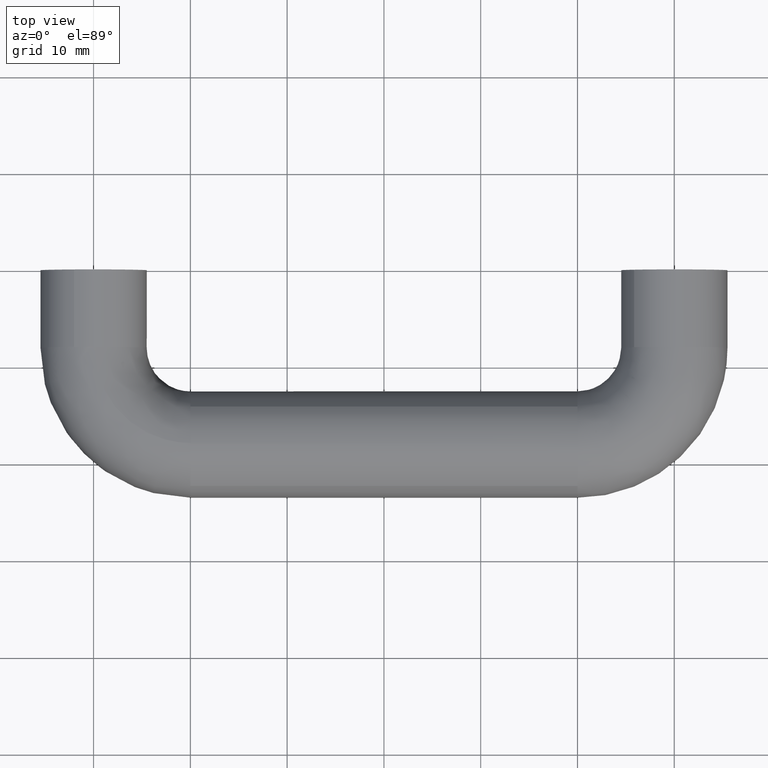
[diagram: clean part render]
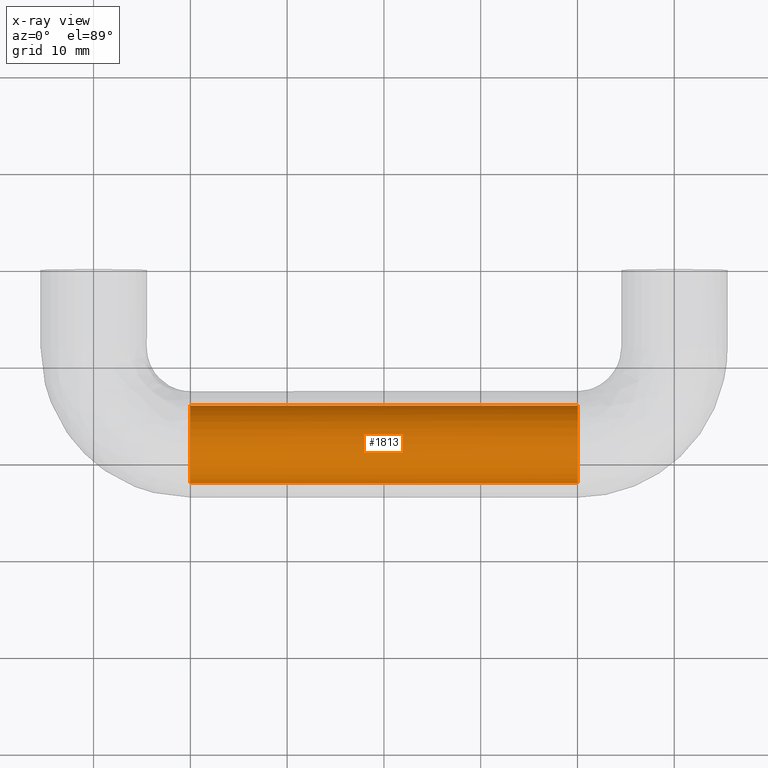
[diagram: x-ray — body ghosted, one internal face saturated and labeled with its STEP entity id]
A machine part, top view, then the same camera in x-ray: the body is ghosted and one INTERNAL B-rep face — a face not visible from any outside direction — is saturated and labeled: STEP entity #1813.
In plain terms, the highlighted face is a freeform B-spline surface patch.
Its self-contained STEP definition (entity closure, byte-faithful):
#1649=CARTESIAN_POINT('',(8.999999999700151,-14.814781025864573,-2.419582626571707));
#1650=CARTESIAN_POINT('',(8.999999999700149,-12.529839849337423,0.588389868490306));
#1651=CARTESIAN_POINT('',(8.999999999700149,-15.402207806679270,3.041623862400123));
#1652=CARTESIAN_POINT('',(8.999999999700149,-18.443831669079394,5.639416055720857));
#1653=CARTESIAN_POINT('',(8.999999999700149,-21.041623862400119,2.597792193320733));
#1654=CARTESIAN_POINT('',(8.999999999700149,-23.639416055720847,-0.443831669079390));
#1655=CARTESIAN_POINT('',(8.999999999700149,-20.597792193320728,-3.041623862400123));
#1656=CARTESIAN_POINT('',(51.025000000416547,-14.814781025864573,-2.419582626571707));
#1657=CARTESIAN_POINT('',(51.025000000416533,-12.529839849337423,0.588389868490306));
#1658=CARTESIAN_POINT('',(51.025000000416540,-15.402207806679270,3.041623862400123));
#1659=CARTESIAN_POINT('',(51.025000000416547,-18.443831669079394,5.639416055720857));
#1660=CARTESIAN_POINT('',(51.025000000416540,-21.041623862400119,2.597792193320733));
#1661=CARTESIAN_POINT('',(51.025000000416547,-23.639416055720847,-0.443831669079390));
#1662=CARTESIAN_POINT('',(51.025000000416540,-20.597792193320728,-3.041623862400123));
#1670=(BOUNDED_SURFACE()B_SPLINE_SURFACE(2,1,((#1649,#1656),(#1650,#1657),(#1651,#1658),(#1652,#1659),(#1653,#1660),(#1654,#1661),(#1655,#1662)),.UNSPECIFIED.,.F.,.F.,.U.)B_SPLINE_SURFACE_WITH_KNOTS((3,2,2,3),(2,2),(0.0,6.362320318050736,12.989737316020260,19.617154313989779),(0.0,42.025000000716403),.UNSPECIFIED.)GEOMETRIC_REPRESENTATION_ITEM()RATIONAL_B_SPLINE_SURFACE(((0.977505800795127,0.977505800795127),(0.718822509939086,0.718822509939086),(1.0,1.0),(0.707106781186548,0.707106781186548),(1.0,1.0),(0.707106781186548,0.707106781186548),(1.0,1.0)))REPRESENTATION_ITEM('')SURFACE());
#1671=CARTESIAN_POINT('',(10.0,-14.0,0.0));
#1672=VERTEX_POINT('',#1671);
#1673=CARTESIAN_POINT('',(9.999999999999972,-14.814778528445130,-2.419579338878711));
#1674=VERTEX_POINT('',#1673);
#1675=CARTESIAN_POINT('',(10.0,-14.0,0.0));
#1676=CARTESIAN_POINT('',(9.999999999999998,-13.999999999999998,-1.346975509917489));
#1677=CARTESIAN_POINT('',(9.999999999999973,-14.814778528445126,-2.419579338878712));
#1685=(BOUNDED_CURVE()B_SPLINE_CURVE(2,(#1675,#1676,#1677),.UNSPECIFIED.,.F.,.U.)B_SPLINE_CURVE_WITH_KNOTS((3,3),(0.500000000000000,0.604483215269030),.UNSPECIFIED.)CURVE()GEOMETRIC_REPRESENTATION_ITEM()RATIONAL_B_SPLINE_CURVE((1.0,0.877590299071500,0.857498671208040))REPRESENTATION_ITEM(''));
#1686=EDGE_CURVE('',#1672,#1674,#1685,.T.);
#1687=ORIENTED_EDGE('',*,*,#1686,.T.);
#1688=CARTESIAN_POINT('',(50.000000000083389,-14.814777962650570,-2.419578593964563));
#1689=VERTEX_POINT('',#1688);
#1690=CARTESIAN_POINT('',(9.999999999999972,-14.814778528445130,-2.419579338878711));
#1691=CARTESIAN_POINT('',(50.000000000083389,-14.814777962650570,-2.419578593964563));
#1692=QUASI_UNIFORM_CURVE('',1,(#1690,#1691),.UNSPECIFIED.,.F.,.U.);
#1693=EDGE_CURVE('',#1674,#1689,#1692,.T.);
#1694=ORIENTED_EDGE('',*,*,#1693,.T.);
#1695=CARTESIAN_POINT('',(50.0,-18.0,4.0));
#1696=VERTEX_POINT('',#1695);
#1697=CARTESIAN_POINT('',(50.0,-18.0,4.0));
#1698=CARTESIAN_POINT('',(50.0,-13.999999999999998,4.000000000000000));
#1699=CARTESIAN_POINT('',(50.0,-14.0,0.0));
#1700=CARTESIAN_POINT('',(50.0,-14.000000000000002,-1.346974989124868));
#1701=CARTESIAN_POINT('',(50.000000000083389,-14.814777962650570,-2.419578593964563));
#1709=(BOUNDED_CURVE()B_SPLINE_CURVE(2,(#1697,#1698,#1699,#1700,#1701),.UNSPECIFIED.,.F.,.U.)B_SPLINE_CURVE_WITH_KNOTS((3,2,3),(0.500000000000000,0.750000000000000,0.854483179816806),.UNSPECIFIED.)CURVE()GEOMETRIC_REPRESENTATION_ITEM()RATIONAL_B_SPLINE_CURVE((1.0,0.707106781186548,1.0,0.877590340606364,0.857498684842642))REPRESENTATION_ITEM(''));
#1710=EDGE_CURVE('',#1696,#1689,#1709,.T.);
#1711=ORIENTED_EDGE('',*,*,#1710,.F.);
#1712=CARTESIAN_POINT('',(50.000000000098773,-21.851779585149771,1.078792856587151));
#1713=VERTEX_POINT('',#1712);
#1714=CARTESIAN_POINT('',(50.000000000098773,-21.851779585149767,1.078792856587151));
#1715=CARTESIAN_POINT('',(50.0,-21.033618179687778,4.000000000000001));
#1716=CARTESIAN_POINT('',(50.0,-18.0,4.0));
#1724=(BOUNDED_CURVE()B_SPLINE_CURVE(2,(#1714,#1715,#1716),.UNSPECIFIED.,.F.,.U.)B_SPLINE_CURVE_WITH_KNOTS((3,3),(0.295960702212788,0.500000000000000),.UNSPECIFIED.)CURVE()GEOMETRIC_REPRESENTATION_ITEM()RATIONAL_B_SPLINE_CURVE((0.912105890423223,0.760953093226667,1.0))REPRESENTATION_ITEM(''));
#1725=EDGE_CURVE('',#1713,#1696,#1724,.T.);
#1726=ORIENTED_EDGE('',*,*,#1725,.F.);
#1727=CARTESIAN_POINT('',(50.000000000000007,-20.597792200902990,-3.041623855924266));
#1728=VERTEX_POINT('',#1727);
#1729=CARTESIAN_POINT('',(50.000000000000007,-20.597792200902997,-3.041623855924266));
#1730=CARTESIAN_POINT('',(49.999999999999993,-22.0,-1.844025245618775));
#1731=CARTESIAN_POINT('',(50.0,-22.0,0.0));
#1732=CARTESIAN_POINT('',(50.0,-22.000000000000004,0.549578777593024));
#1733=CARTESIAN_POINT('',(50.000000000098765,-21.851779585149764,1.078792856587151));
#1741=(BOUNDED_CURVE()B_SPLINE_CURVE(2,(#1729,#1730,#1731,#1732,#1733),.UNSPECIFIED.,.F.,.U.)B_SPLINE_CURVE_WITH_KNOTS((3,2,3),(0.113143162102814,0.250000000000000,0.295960702212788),.UNSPECIFIED.)CURVE()GEOMETRIC_REPRESENTATION_ITEM()RATIONAL_B_SPLINE_CURVE((0.854871031471696,0.839662240926649,1.0,0.946153687959880,0.912105890423223))REPRESENTATION_ITEM(''));
#1742=EDGE_CURVE('',#1728,#1713,#1741,.T.);
#1743=ORIENTED_EDGE('',*,*,#1742,.F.);
#1744=CARTESIAN_POINT('',(10.0,-20.597790521545502,-3.041625290229478));
#1745=VERTEX_POINT('',#1744);
#1746=CARTESIAN_POINT('',(10.0,-20.597790521545502,-3.041625290229478));
#1747=CARTESIAN_POINT('',(50.000000000000007,-20.597792200902990,-3.041623855924266));
#1748=QUASI_UNIFORM_CURVE('',1,(#1746,#1747),.UNSPECIFIED.,.F.,.U.);
#1749=EDGE_CURVE('',#1745,#1728,#1748,.T.);
#1750=ORIENTED_EDGE('',*,*,#1749,.F.);
#1751=CARTESIAN_POINT('',(10.0,-22.0,0.0));
#1752=VERTEX_POINT('',#1751);
#1753=CARTESIAN_POINT('',(10.0,-20.597790521545495,-3.041625290229478));
#1754=CARTESIAN_POINT('',(10.0,-21.999999999999996,-1.844026590597041));
#1755=CARTESIAN_POINT('',(10.0,-22.0,0.0));
#1763=(BOUNDED_CURVE()B_SPLINE_CURVE(2,(#1753,#1754,#1755),.UNSPECIFIED.,.F.,.U.)B_SPLINE_CURVE_WITH_KNOTS((3,3),(0.863143078288252,1.0),.UNSPECIFIED.)CURVE()GEOMETRIC_REPRESENTATION_ITEM()RATIONAL_B_SPLINE_CURVE((0.854871050100251,0.839662142731782,1.0))REPRESENTATION_ITEM(''));
#1764=EDGE_CURVE('',#1745,#1752,#1763,.T.);
#1765=ORIENTED_EDGE('',*,*,#1764,.T.);
#1766=CARTESIAN_POINT('',(9.999999999717197,-18.050264160778781,3.999684176799613));
#1767=VERTEX_POINT('',#1766);
#1768=CARTESIAN_POINT('',(10.0,-22.0,0.0));
#1769=CARTESIAN_POINT('',(10.0,-22.000000000000007,3.950047717169216));
#1770=CARTESIAN_POINT('',(9.999999999717197,-18.050264160778777,3.999684176799613));
#1778=(BOUNDED_CURVE()B_SPLINE_CURVE(2,(#1768,#1769,#1770),.UNSPECIFIED.,.F.,.U.)B_SPLINE_CURVE_WITH_KNOTS((3,3),(0.0,0.247784295812209),.UNSPECIFIED.)CURVE()GEOMETRIC_REPRESENTATION_ITEM()RATIONAL_B_SPLINE_CURVE((1.0,0.709702640112550,0.994854295391942))REPRESENTATION_ITEM(''));
#1779=EDGE_CURVE('',#1752,#1767,#1778,.T.);
#1780=ORIENTED_EDGE('',*,*,#1779,.T.);
#1781=CARTESIAN_POINT('',(9.999999999990450,-14.191617109476480,1.223200620980765));
#1782=VERTEX_POINT('',#1781);
#1783=CARTESIAN_POINT('',(9.999999999717197,-18.050264160778777,3.999684176799613));
#1784=CARTESIAN_POINT('',(10.000000000000002,-18.025133073213087,4.000000000000001));
#1785=CARTESIAN_POINT('',(10.0,-18.0,4.0));
#1786=CARTESIAN_POINT('',(9.999999999999998,-15.083487182046289,4.0));
#1787=CARTESIAN_POINT('',(9.999999999990450,-14.191617109476475,1.223200620980765));
#1795=(BOUNDED_CURVE()B_SPLINE_CURVE(2,(#1783,#1784,#1785,#1786,#1787),.UNSPECIFIED.,.F.,.U.)B_SPLINE_CURVE_WITH_KNOTS((3,2,3),(0.247784295812209,0.250000000000000,0.447989877422610),.UNSPECIFIED.)CURVE()GEOMETRIC_REPRESENTATION_ITEM()RATIONAL_B_SPLINE_CURVE((0.994854295391942,0.997404141073998,1.0,0.768040430036844,0.903486034665741))REPRESENTATION_ITEM(''));
#1796=EDGE_CURVE('',#1767,#1782,#1795,.T.);
#1797=ORIENTED_EDGE('',*,*,#1796,.T.);
#1798=CARTESIAN_POINT('',(9.999999999990450,-14.191617109476480,1.223200620980765));
#1799=CARTESIAN_POINT('',(10.0,-13.999999999999995,0.626608934626011));
#1800=CARTESIAN_POINT('',(10.0,-14.0,0.0));
#1808=(BOUNDED_CURVE()B_SPLINE_CURVE(2,(#1798,#1799,#1800),.UNSPECIFIED.,.F.,.U.)B_SPLINE_CURVE_WITH_KNOTS((3,3),(0.447989877422610,0.500000000000000),.UNSPECIFIED.)CURVE()GEOMETRIC_REPRESENTATION_ITEM()RATIONAL_B_SPLINE_CURVE((0.903486034665741,0.939066351149705,1.0))REPRESENTATION_ITEM(''));
#1809=EDGE_CURVE('',#1782,#1672,#1808,.T.);
#1810=ORIENTED_EDGE('',*,*,#1809,.T.);
#1811=EDGE_LOOP('',(#1687,#1694,#1711,#1726,#1743,#1750,#1765,#1780,#1797,#1810));
#1812=FACE_OUTER_BOUND('',#1811,.T.);
#1813=ADVANCED_FACE('',(#1812),#1670,.F.);